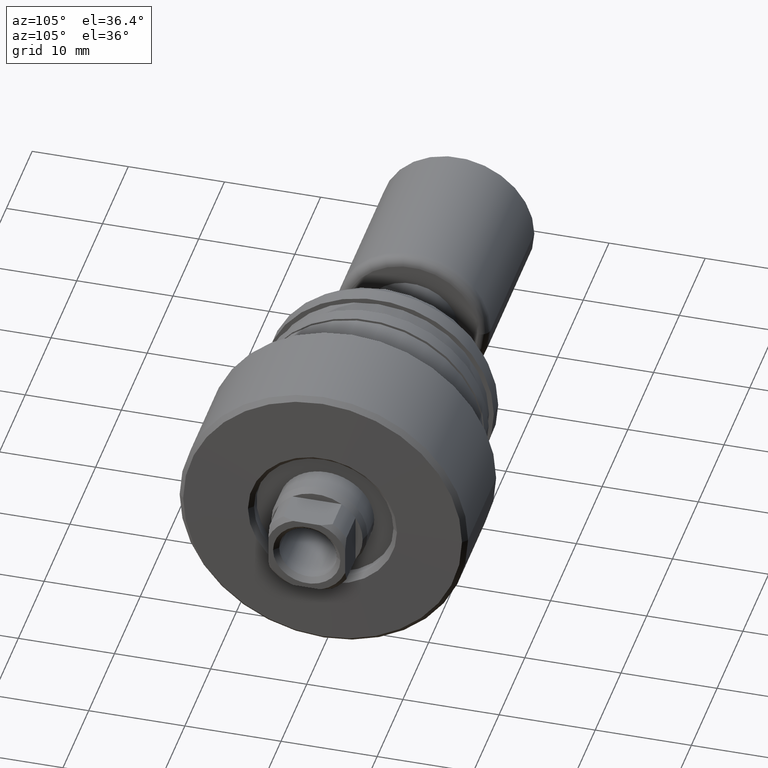
[diagram: clean part render]
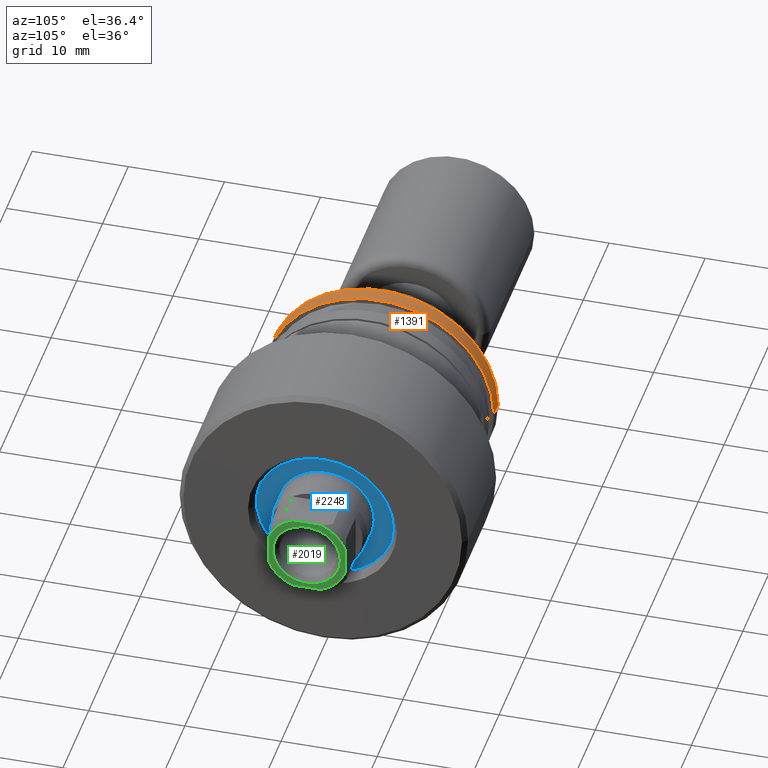
[diagram: same view with three faces highlighted in distinct colors, each labeled with its STEP entity id]
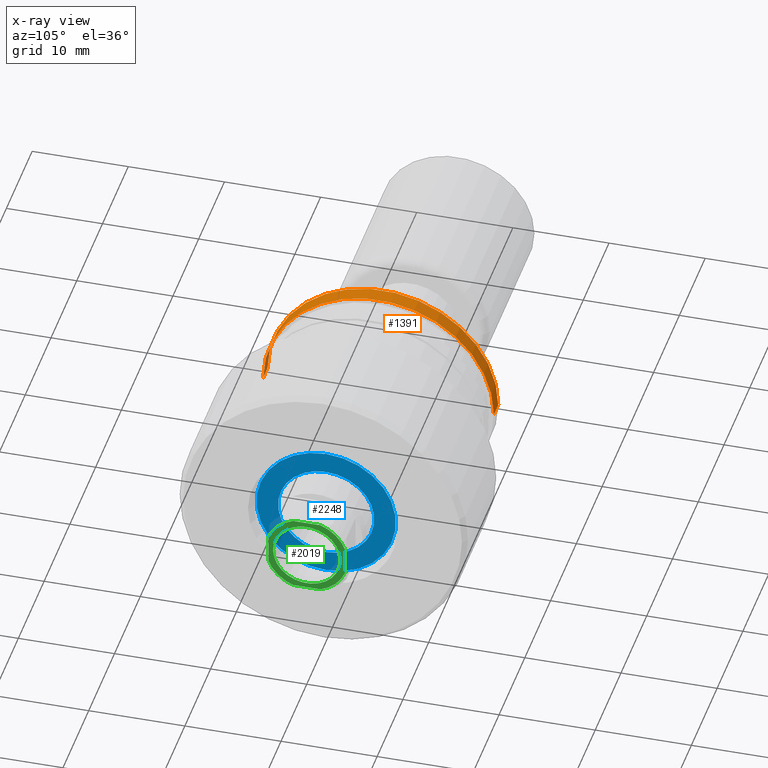
[diagram: x-ray of the same camera — body ghosted, the three highlighted faces saturated]
A machine part, auxiliary view with three faces highlighted in distinct colors.
The next image is the same camera in x-ray (body ghosted, the three faces saturated) — at least one of them is partly hidden behind the body in this view.
Their STEP definitions:

[orange] entity #1391 — the highlighted cylindrical surface (partial cylindrical patch) has radius 12 mm, axis along (-1, 0, 0).
#6 = ORIENTED_EDGE ( 'NONE', *, *, #138, .T. ) ;
#34 = CARTESIAN_POINT ( 'NONE',  ( -23.50000000000016342, 11.99999999999999467, 0.000000000000000000 ) ) ;
#127 = DIRECTION ( 'NONE',  ( -1.000000000000000000, 6.415603269213350828E-16, -0.000000000000000000 ) ) ;
#138 = EDGE_CURVE ( 'NONE', #1721, #2330, #1452, .T. ) ;
#145 = CARTESIAN_POINT ( 'NONE',  ( -23.50000000000017053, -4.349793622883880783E-15, 0.000000000000000000 ) ) ;
#156 = DIRECTION ( 'NONE',  ( -5.782411586589357639E-16, -1.000000000000000000, 0.000000000000000000 ) ) ;
#254 = CYLINDRICAL_SURFACE ( 'NONE', #740, 11.99999999999999822 ) ;
#286 = CARTESIAN_POINT ( 'NONE',  ( -21.80878161770237256, 11.99999999999999289, 1.469576158976823750E-15 ) ) ;
#289 = CARTESIAN_POINT ( 'NONE',  ( -30.28002276692732408, 0.000000000000000000, 0.000000000000000000 ) ) ;
#376 = EDGE_CURVE ( 'NONE', #607, #2330, #2147, .T. ) ;
#392 = LINE ( 'NONE', #1344, #1171 ) ;
#450 = FACE_OUTER_BOUND ( 'NONE', #1855, .T. ) ;
#607 = VERTEX_POINT ( 'NONE', #947 ) ;
#660 = DIRECTION ( 'NONE',  ( -5.782411586589357639E-16, -1.000000000000000000, 0.000000000000000000 ) ) ;
#740 = AXIS2_PLACEMENT_3D ( 'NONE', #289, #1590, #660 ) ;
#806 = CARTESIAN_POINT ( 'NONE',  ( -21.80878161770237966, -5.434812241126222837E-15, 0.000000000000000000 ) ) ;
#931 = CIRCLE ( 'NONE', #1614, 11.99999999999999822 ) ;
#947 = CARTESIAN_POINT ( 'NONE',  ( -23.50000000000017764, -12.00000000000000178, 1.469576158976823750E-15 ) ) ;
#992 = DIRECTION ( 'NONE',  ( -1.000000000000000000, 6.415603269213350828E-16, -0.000000000000000000 ) ) ;
#1050 = ORIENTED_EDGE ( 'NONE', *, *, #1909, .T. ) ;
#1171 = VECTOR ( 'NONE', #2268, 1000.000000000000000 ) ;
#1235 = AXIS2_PLACEMENT_3D ( 'NONE', #145, #127, #156 ) ;
#1344 = CARTESIAN_POINT ( 'NONE',  ( -30.28002276692733119, -11.99999999999999822, 0.000000000000000000 ) ) ;
#1391 = ADVANCED_FACE ( 'NONE', ( #450 ), #254, .T. ) ;
#1430 = ORIENTED_EDGE ( 'NONE', *, *, #2265, .F. ) ;
#1452 = LINE ( 'NONE', #2209, #1673 ) ;
#1590 = DIRECTION ( 'NONE',  ( -1.000000000000000000, 6.415603269213350828E-16, -0.000000000000000000 ) ) ;
#1614 = AXIS2_PLACEMENT_3D ( 'NONE', #806, #992, #1946 ) ;
#1673 = VECTOR ( 'NONE', #2378, 1000.000000000000000 ) ;
#1721 = VERTEX_POINT ( 'NONE', #286 ) ;
#1750 = CARTESIAN_POINT ( 'NONE',  ( -21.80878161770238677, -12.00000000000000355, 0.000000000000000000 ) ) ;
#1784 = ORIENTED_EDGE ( 'NONE', *, *, #376, .F. ) ;
#1855 = EDGE_LOOP ( 'NONE', ( #1050, #6, #1784, #1430 ) ) ;
#1909 = EDGE_CURVE ( 'NONE', #2348, #1721, #931, .T. ) ;
#1946 = DIRECTION ( 'NONE',  ( -5.782411586589357639E-16, -1.000000000000000000, 0.000000000000000000 ) ) ;
#2147 = CIRCLE ( 'NONE', #1235, 11.99999999999999822 ) ;
#2209 = CARTESIAN_POINT ( 'NONE',  ( -30.28002276692731698, 11.99999999999999822, 1.469576158976823750E-15 ) ) ;
#2265 = EDGE_CURVE ( 'NONE', #2348, #607, #392, .T. ) ;
#2268 = DIRECTION ( 'NONE',  ( -1.000000000000000000, 6.415603269213350828E-16, -0.000000000000000000 ) ) ;
#2330 = VERTEX_POINT ( 'NONE', #34 ) ;
#2348 = VERTEX_POINT ( 'NONE', #1750 ) ;
#2378 = DIRECTION ( 'NONE',  ( -1.000000000000000000, 6.415603269213350828E-16, -0.000000000000000000 ) ) ;

[blue] entity #2248 — the highlighted planar face has unit normal (1, 0, 0).
#59 = EDGE_CURVE ( 'NONE', #2213, #2245, #1796, .T. ) ;
#70 = AXIS2_PLACEMENT_3D ( 'NONE', #755, #1326, #348 ) ;
#134 = DIRECTION ( 'NONE',  ( 1.000000000000000000, 0.000000000000000000, 0.000000000000000000 ) ) ;
#244 = EDGE_LOOP ( 'NONE', ( #1231, #1035 ) ) ;
#348 = DIRECTION ( 'NONE',  ( 0.000000000000000000, 0.000000000000000000, -1.000000000000000000 ) ) ;
#372 = CARTESIAN_POINT ( 'NONE',  ( -1.500000000000000000, 0.000000000000000000, -5.000000000000000000 ) ) ;
#378 = PLANE ( 'NONE',  #429 ) ;
#429 = AXIS2_PLACEMENT_3D ( 'NONE', #1316, #1695, #2069 ) ;
#490 = EDGE_LOOP ( 'NONE', ( #2293, #1012 ) ) ;
#498 = CIRCLE ( 'NONE', #1989, 7.250000000000000000 ) ;
#571 = FACE_OUTER_BOUND ( 'NONE', #490, .T. ) ;
#616 = EDGE_CURVE ( 'NONE', #2245, #2213, #498, .T. ) ;
#753 = CARTESIAN_POINT ( 'NONE',  ( -1.500000000000000000, 6.123233995736766282E-16, 5.000000000000000000 ) ) ;
#755 = CARTESIAN_POINT ( 'NONE',  ( -1.500000000000000000, 0.000000000000000000, 0.000000000000000000 ) ) ;
#858 = CARTESIAN_POINT ( 'NONE',  ( -1.500000000000000000, 0.000000000000000000, 0.000000000000000000 ) ) ;
#869 = EDGE_CURVE ( 'NONE', #1741, #963, #1237, .T. ) ;
#961 = CARTESIAN_POINT ( 'NONE',  ( -1.500000000000000000, 0.000000000000000000, 0.000000000000000000 ) ) ;
#963 = VERTEX_POINT ( 'NONE', #372 ) ;
#1012 = ORIENTED_EDGE ( 'NONE', *, *, #59, .T. ) ;
#1035 = ORIENTED_EDGE ( 'NONE', *, *, #869, .F. ) ;
#1231 = ORIENTED_EDGE ( 'NONE', *, *, #1253, .F. ) ;
#1237 = CIRCLE ( 'NONE', #70, 5.000000000000000000 ) ;
#1253 = EDGE_CURVE ( 'NONE', #963, #1741, #1610, .T. ) ;
#1316 = CARTESIAN_POINT ( 'NONE',  ( -1.500000000000000000, 0.000000000000000000, 0.000000000000000000 ) ) ;
#1326 = DIRECTION ( 'NONE',  ( 1.000000000000000000, 0.000000000000000000, 0.000000000000000000 ) ) ;
#1355 = CARTESIAN_POINT ( 'NONE',  ( -1.500000000000000000, 0.000000000000000000, -7.250000000000000000 ) ) ;
#1436 = DIRECTION ( 'NONE',  ( 1.000000000000000000, 0.000000000000000000, 0.000000000000000000 ) ) ;
#1540 = DIRECTION ( 'NONE',  ( 0.000000000000000000, 0.000000000000000000, -1.000000000000000000 ) ) ;
#1610 = CIRCLE ( 'NONE', #2272, 5.000000000000000000 ) ;
#1643 = DIRECTION ( 'NONE',  ( 0.000000000000000000, 0.000000000000000000, -1.000000000000000000 ) ) ;
#1695 = DIRECTION ( 'NONE',  ( 1.000000000000000000, 0.000000000000000000, 0.000000000000000000 ) ) ;
#1722 = DIRECTION ( 'NONE',  ( 1.000000000000000000, 0.000000000000000000, 0.000000000000000000 ) ) ;
#1723 = FACE_BOUND ( 'NONE', #244, .T. ) ;
#1741 = VERTEX_POINT ( 'NONE', #753 ) ;
#1796 = CIRCLE ( 'NONE', #2146, 7.250000000000000000 ) ;
#1989 = AXIS2_PLACEMENT_3D ( 'NONE', #961, #1722, #1540 ) ;
#2069 = DIRECTION ( 'NONE',  ( 0.000000000000000000, 0.000000000000000000, -1.000000000000000000 ) ) ;
#2146 = AXIS2_PLACEMENT_3D ( 'NONE', #2385, #1436, #2190 ) ;
#2190 = DIRECTION ( 'NONE',  ( 0.000000000000000000, 0.000000000000000000, -1.000000000000000000 ) ) ;
#2213 = VERTEX_POINT ( 'NONE', #2255 ) ;
#2245 = VERTEX_POINT ( 'NONE', #1355 ) ;
#2248 = ADVANCED_FACE ( 'NONE', ( #1723, #571 ), #378, .T. ) ;
#2255 = CARTESIAN_POINT ( 'NONE',  ( -1.500000000000000000, 8.878689293818310074E-16, 7.250000000000000000 ) ) ;
#2272 = AXIS2_PLACEMENT_3D ( 'NONE', #858, #134, #1643 ) ;
#2293 = ORIENTED_EDGE ( 'NONE', *, *, #616, .T. ) ;
#2385 = CARTESIAN_POINT ( 'NONE',  ( -1.500000000000000000, 0.000000000000000000, 0.000000000000000000 ) ) ;

[green] entity #2019 — the highlighted planar face has unit normal (-1, -0, 0).
#23 = CARTESIAN_POINT ( 'NONE',  ( 59.99999999999998579, 6.417253932414392401E-16, 0.000000000000000000 ) ) ;
#57 = DIRECTION ( 'NONE',  ( 1.000000000000000000, 1.069542322069065801E-17, 0.000000000000000000 ) ) ;
#71 = CARTESIAN_POINT ( 'NONE',  ( 59.99999999999998579, 3.999999999997830624, 1.436140661641043703 ) ) ;
#103 = AXIS2_PLACEMENT_3D ( 'NONE', #1403, #57, #1562 ) ;
#126 = EDGE_LOOP ( 'NONE', ( #2144, #219, #943, #1417, #2133, #2149, #1694, #913 ) ) ;
#160 = EDGE_CURVE ( 'NONE', #2161, #684, #255, .T. ) ;
#172 = CIRCLE ( 'NONE', #1524, 4.250000000000181188 ) ;
#207 = VERTEX_POINT ( 'NONE', #2107 ) ;
#219 = ORIENTED_EDGE ( 'NONE', *, *, #1636, .T. ) ;
#226 = ORIENTED_EDGE ( 'NONE', *, *, #160, .T. ) ;
#232 = CARTESIAN_POINT ( 'NONE',  ( 59.99999999999998579, -9.943588796953380466E-13, 0.000000000000000000 ) ) ;
#236 = EDGE_CURVE ( 'NONE', #207, #2243, #172, .T. ) ;
#239 = LINE ( 'NONE', #1749, #1569 ) ;
#241 = CARTESIAN_POINT ( 'NONE',  ( 59.99999999999996447, -1.436140661638269700, 3.999999999998825828 ) ) ;
#255 = CIRCLE ( 'NONE', #296, 3.500000000000160316 ) ;
#288 = EDGE_CURVE ( 'NONE', #1096, #2243, #2373, .T. ) ;
#296 = AXIS2_PLACEMENT_3D ( 'NONE', #2091, #1298, #1150 ) ;
#404 = DIRECTION ( 'NONE',  ( 1.625200096080654050E-14, 1.000000000000000000, 1.692916766750681384E-16 ) ) ;
#425 = FACE_BOUND ( 'NONE', #488, .T. ) ;
#437 = PLANE ( 'NONE',  #2080 ) ;
#488 = EDGE_LOOP ( 'NONE', ( #1443, #226 ) ) ;
#504 = AXIS2_PLACEMENT_3D ( 'NONE', #1856, #1135, #736 ) ;
#529 = EDGE_CURVE ( 'NONE', #1284, #987, #239, .T. ) ;
#594 = VECTOR ( 'NONE', #404, 1000.000000000000000 ) ;
#667 = EDGE_CURVE ( 'NONE', #1284, #2175, #778, .T. ) ;
#684 = VERTEX_POINT ( 'NONE', #1943 ) ;
#736 = DIRECTION ( 'NONE',  ( 0.000000000000000000, -1.000000000000000000, 5.329070518200751394E-15 ) ) ;
#778 = CIRCLE ( 'NONE', #103, 4.250000000000166089 ) ;
#797 = DIRECTION ( 'NONE',  ( 1.000000000000000000, 1.069542322069065801E-17, 0.000000000000000000 ) ) ;
#830 = DIRECTION ( 'NONE',  ( 1.069542322069065801E-17, -1.000000000000000000, 0.000000000000000000 ) ) ;
#882 = CARTESIAN_POINT ( 'NONE',  ( 60.00000000000002842, 2.561737691488845226, -3.999999999998824940 ) ) ;
#902 = CARTESIAN_POINT ( 'NONE',  ( 59.99999999999998579, 6.417253932414392401E-16, 0.000000000000000000 ) ) ;
#913 = ORIENTED_EDGE ( 'NONE', *, *, #236, .T. ) ;
#933 = CARTESIAN_POINT ( 'NONE',  ( 59.99999999999996447, -1.436140661638316773, -3.999999999998825828 ) ) ;
#943 = ORIENTED_EDGE ( 'NONE', *, *, #529, .F. ) ;
#948 = CARTESIAN_POINT ( 'NONE',  ( 59.99999999999994316, -2.561737691490833857, 3.999999999998824940 ) ) ;
#979 = CIRCLE ( 'NONE', #1612, 4.250000000000161648 ) ;
#987 = VERTEX_POINT ( 'NONE', #2246 ) ;
#1053 = DIRECTION ( 'NONE',  ( -1.625200096080654050E-14, -1.000000000000000000, -1.692916766750681384E-16 ) ) ;
#1096 = VERTEX_POINT ( 'NONE', #2416 ) ;
#1135 = DIRECTION ( 'NONE',  ( 1.000000000000000000, 1.069542322069065801E-17, 0.000000000000000000 ) ) ;
#1136 = DIRECTION ( 'NONE',  ( 0.000000000000000000, -5.078750300252043906E-16, 1.000000000000000000 ) ) ;
#1150 = DIRECTION ( 'NONE',  ( 0.000000000000000000, -1.000000000000000000, 0.000000000000000000 ) ) ;
#1180 = DIRECTION ( 'NONE',  ( -1.000000000000000000, -1.069542322069065801E-17, 0.000000000000000000 ) ) ;
#1182 = VERTEX_POINT ( 'NONE', #1786 ) ;
#1202 = CIRCLE ( 'NONE', #2202, 3.500000000000160316 ) ;
#1284 = VERTEX_POINT ( 'NONE', #71 ) ;
#1298 = DIRECTION ( 'NONE',  ( -1.000000000000000000, -1.069542322069065801E-17, -0.000000000000000000 ) ) ;
#1305 = CARTESIAN_POINT ( 'NONE',  ( 59.99999999999998579, -3.500000000001269651, 4.286263797016072847E-16 ) ) ;
#1329 = EDGE_CURVE ( 'NONE', #207, #1182, #1575, .T. ) ;
#1349 = DIRECTION ( 'NONE',  ( 0.000000000000000000, -1.000000000000000000, 0.000000000000000000 ) ) ;
#1377 = CARTESIAN_POINT ( 'NONE',  ( 59.99999999999991473, -3.999999999999817923, -2.561737691489840429 ) ) ;
#1403 = CARTESIAN_POINT ( 'NONE',  ( 59.99999999999998579, 6.417253932414392401E-16, 0.000000000000000000 ) ) ;
#1417 = ORIENTED_EDGE ( 'NONE', *, *, #667, .T. ) ;
#1443 = ORIENTED_EDGE ( 'NONE', *, *, #1927, .T. ) ;
#1524 = AXIS2_PLACEMENT_3D ( 'NONE', #23, #797, #2295 ) ;
#1529 = VECTOR ( 'NONE', #1136, 1000.000000000000000 ) ;
#1562 = DIRECTION ( 'NONE',  ( 0.000000000000000000, -1.000000000000000000, 8.881784197001252323E-16 ) ) ;
#1569 = VECTOR ( 'NONE', #2287, 1000.000000000000000 ) ;
#1575 = LINE ( 'NONE', #1377, #1529 ) ;
#1612 = AXIS2_PLACEMENT_3D ( 'NONE', #902, #2419, #1626 ) ;
#1626 = DIRECTION ( 'NONE',  ( 0.000000000000000000, -1.000000000000000000, 8.881784197001252323E-16 ) ) ;
#1636 = EDGE_CURVE ( 'NONE', #1096, #987, #979, .T. ) ;
#1694 = ORIENTED_EDGE ( 'NONE', *, *, #1329, .F. ) ;
#1749 = CARTESIAN_POINT ( 'NONE',  ( 60.00000000000005684, 3.999999999997830624, 2.561737691489839985 ) ) ;
#1786 = CARTESIAN_POINT ( 'NONE',  ( 59.99999999999991473, -3.999999999999819700, 1.436140661635499249 ) ) ;
#1844 = EDGE_CURVE ( 'NONE', #1906, #1182, #1883, .T. ) ;
#1856 = CARTESIAN_POINT ( 'NONE',  ( 59.99999999999998579, 6.417253932414392401E-16, 0.000000000000000000 ) ) ;
#1883 = CIRCLE ( 'NONE', #504, 4.250000000000166089 ) ;
#1891 = LINE ( 'NONE', #948, #594 ) ;
#1906 = VERTEX_POINT ( 'NONE', #241 ) ;
#1923 = DIRECTION ( 'NONE',  ( -1.000000000000000000, -1.069542322069065801E-17, -0.000000000000000000 ) ) ;
#1927 = EDGE_CURVE ( 'NONE', #684, #2161, #1202, .T. ) ;
#1939 = CARTESIAN_POINT ( 'NONE',  ( 59.99999999999998579, 8.673617379884037444E-16, 0.000000000000000000 ) ) ;
#1943 = CARTESIAN_POINT ( 'NONE',  ( 59.99999999999998579, 3.499999999999166889, 0.000000000000000000 ) ) ;
#2019 = ADVANCED_FACE ( 'NONE', ( #425, #2134 ), #437, .F. ) ;
#2042 = CARTESIAN_POINT ( 'NONE',  ( 60.00000000000000711, 1.436140661638271698, 3.999999999998825828 ) ) ;
#2080 = AXIS2_PLACEMENT_3D ( 'NONE', #1939, #1180, #830 ) ;
#2091 = CARTESIAN_POINT ( 'NONE',  ( 59.99999999999998579, -9.943588796953380466E-13, 0.000000000000000000 ) ) ;
#2107 = CARTESIAN_POINT ( 'NONE',  ( 59.99999999999998579, -3.999999999999817923, -1.436140661635549431 ) ) ;
#2113 = VECTOR ( 'NONE', #1053, 1000.000000000000000 ) ;
#2133 = ORIENTED_EDGE ( 'NONE', *, *, #2285, .F. ) ;
#2134 = FACE_OUTER_BOUND ( 'NONE', #126, .T. ) ;
#2144 = ORIENTED_EDGE ( 'NONE', *, *, #288, .F. ) ;
#2149 = ORIENTED_EDGE ( 'NONE', *, *, #1844, .T. ) ;
#2161 = VERTEX_POINT ( 'NONE', #1305 ) ;
#2175 = VERTEX_POINT ( 'NONE', #2042 ) ;
#2202 = AXIS2_PLACEMENT_3D ( 'NONE', #232, #1923, #1349 ) ;
#2243 = VERTEX_POINT ( 'NONE', #933 ) ;
#2246 = CARTESIAN_POINT ( 'NONE',  ( 60.00000000000005684, 3.999999999997831512, -1.436140661641029048 ) ) ;
#2285 = EDGE_CURVE ( 'NONE', #1906, #2175, #1891, .T. ) ;
#2287 = DIRECTION ( 'NONE',  ( 0.000000000000000000, 1.692916766750681384E-16, -1.000000000000000000 ) ) ;
#2295 = DIRECTION ( 'NONE',  ( 0.000000000000000000, -1.000000000000000000, 0.000000000000000000 ) ) ;
#2373 = LINE ( 'NONE', #882, #2113 ) ;
#2416 = CARTESIAN_POINT ( 'NONE',  ( 60.00000000000000711, 1.436140661638260596, -3.999999999998824940 ) ) ;
#2419 = DIRECTION ( 'NONE',  ( 1.000000000000000000, 1.069542322069065801E-17, 0.000000000000000000 ) ) ;